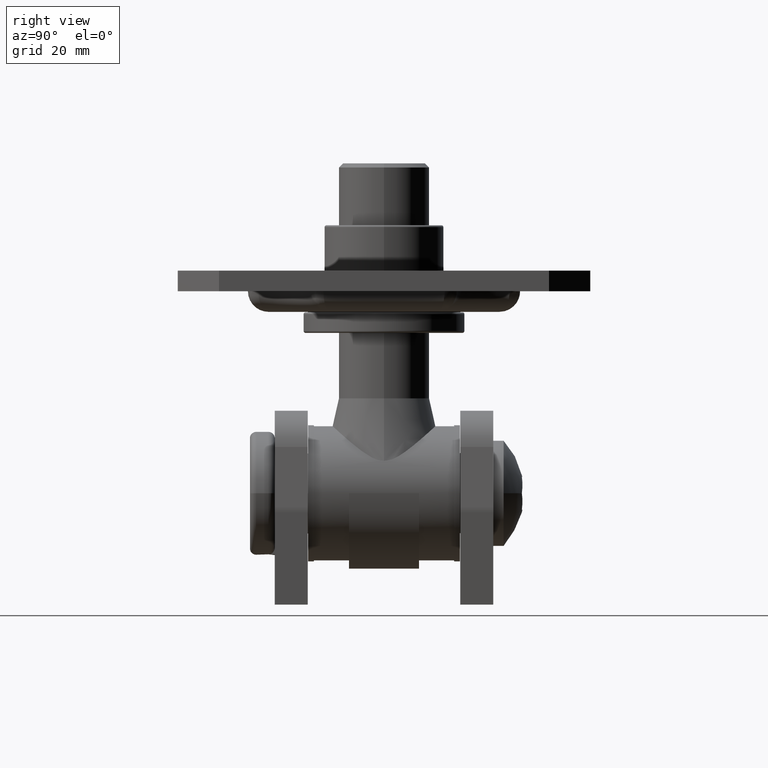
[diagram: clean part render]
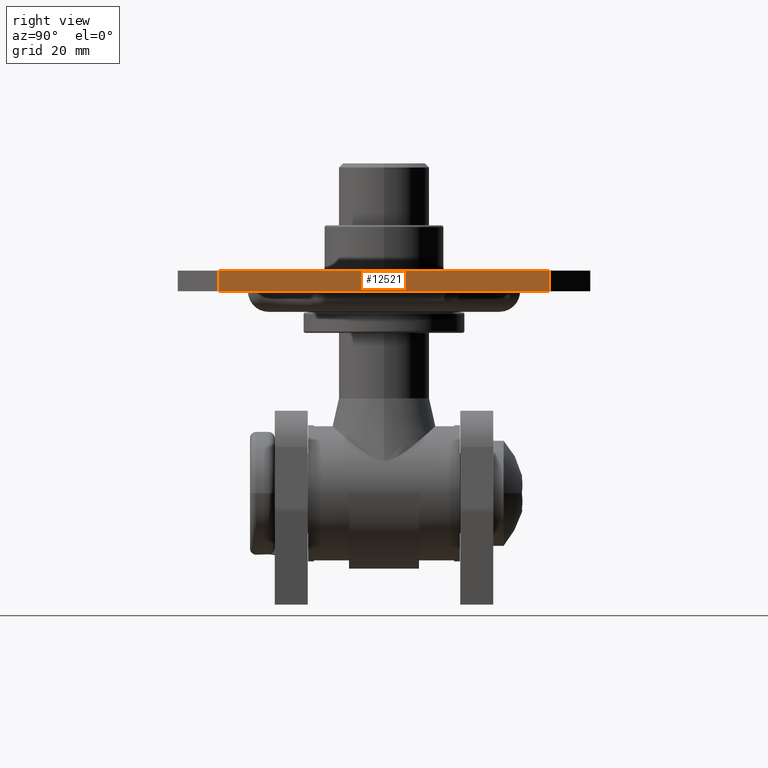
[diagram: same view with one face highlighted and labeled with its STEP entity id]
A machine part, right view. The second image highlights one B-rep face of the part: STEP entity #12521.
In plain terms, the highlighted planar face has unit normal (-1, 0, 0).
Its self-contained STEP definition (entity closure, byte-faithful):
#264 = LINE ( 'NONE', #12815, #15023 ) ;
#420 = CARTESIAN_POINT ( 'NONE',  ( -50.00000000000146400, 50.00000000000145000, 2.500000000000002200 ) ) ;
#1068 = DIRECTION ( 'NONE',  ( 1.000000000000000000, 2.081668171172159400E-016, 0.0000000000000000000 ) ) ;
#1140 = VECTOR ( 'NONE', #5479, 1000.000000000000000 ) ;
#1994 = ORIENTED_EDGE ( 'NONE', *, *, #2354, .T. ) ;
#2354 = EDGE_CURVE ( 'NONE', #5350, #6130, #8308, .T. ) ;
#2555 = LINE ( 'NONE', #420, #14969 ) ;
#2628 = CARTESIAN_POINT ( 'NONE',  ( -50.00000000000146400, 50.00000000000145000, 2.500000000000002200 ) ) ;
#4013 = CARTESIAN_POINT ( 'NONE',  ( -50.00000000000145000, -40.00000000000068900, -2.500000000000002200 ) ) ;
#4129 = VERTEX_POINT ( 'NONE', #4244 ) ;
#4244 = CARTESIAN_POINT ( 'NONE',  ( -50.00000000000145700, -40.00000000000066100, 2.500000000000002200 ) ) ;
#4569 = DIRECTION ( 'NONE',  ( 2.081668171172159400E-016, -1.000000000000000000, -0.0000000000000000000 ) ) ;
#4762 = CARTESIAN_POINT ( 'NONE',  ( -50.00000000000145700, 40.00000000000074600, 2.500000000000002200 ) ) ;
#5350 = VERTEX_POINT ( 'NONE', #17137 ) ;
#5479 = DIRECTION ( 'NONE',  ( 2.081668171172159400E-016, -1.000000000000000000, -0.0000000000000000000 ) ) ;
#6130 = VERTEX_POINT ( 'NONE', #4013 ) ;
#6178 = LINE ( 'NONE', #12332, #7204 ) ;
#7204 = VECTOR ( 'NONE', #8379, 1000.000000000000000 ) ;
#8308 = LINE ( 'NONE', #13543, #1140 ) ;
#8379 = DIRECTION ( 'NONE',  ( 0.0000000000000000000, 0.0000000000000000000, -1.000000000000000000 ) ) ;
#9309 = PLANE ( 'NONE',  #10753 ) ;
#9770 = ORIENTED_EDGE ( 'NONE', *, *, #10643, .T. ) ;
#10643 = EDGE_CURVE ( 'NONE', #6130, #4129, #264, .T. ) ;
#10753 = AXIS2_PLACEMENT_3D ( 'NONE', #2628, #1068, #11849 ) ;
#11543 = EDGE_CURVE ( 'NONE', #14735, #5350, #6178, .T. ) ;
#11849 = DIRECTION ( 'NONE',  ( -2.081668171172159400E-016, 1.000000000000000000, 0.0000000000000000000 ) ) ;
#12332 = CARTESIAN_POINT ( 'NONE',  ( -50.00000000000146400, 40.00000000000071800, 2.500000000000002200 ) ) ;
#12521 = ADVANCED_FACE ( 'NONE', ( #14595 ), #9309, .F. ) ;
#12815 = CARTESIAN_POINT ( 'NONE',  ( -50.00000000000145000, -40.00000000000068900, 2.500000000000002200 ) ) ;
#13543 = CARTESIAN_POINT ( 'NONE',  ( -50.00000000000146400, 50.00000000000145000, -2.500000000000002200 ) ) ;
#13644 = EDGE_CURVE ( 'NONE', #14735, #4129, #2555, .T. ) ;
#14085 = EDGE_LOOP ( 'NONE', ( #14262, #16852, #1994, #9770 ) ) ;
#14262 = ORIENTED_EDGE ( 'NONE', *, *, #13644, .F. ) ;
#14595 = FACE_OUTER_BOUND ( 'NONE', #14085, .T. ) ;
#14735 = VERTEX_POINT ( 'NONE', #4762 ) ;
#14969 = VECTOR ( 'NONE', #4569, 1000.000000000000000 ) ;
#15023 = VECTOR ( 'NONE', #16808, 1000.000000000000000 ) ;
#16808 = DIRECTION ( 'NONE',  ( 0.0000000000000000000, 0.0000000000000000000, 1.000000000000000000 ) ) ;
#16852 = ORIENTED_EDGE ( 'NONE', *, *, #11543, .T. ) ;
#17137 = CARTESIAN_POINT ( 'NONE',  ( -50.00000000000146400, 40.00000000000071800, -2.500000000000002200 ) ) ;